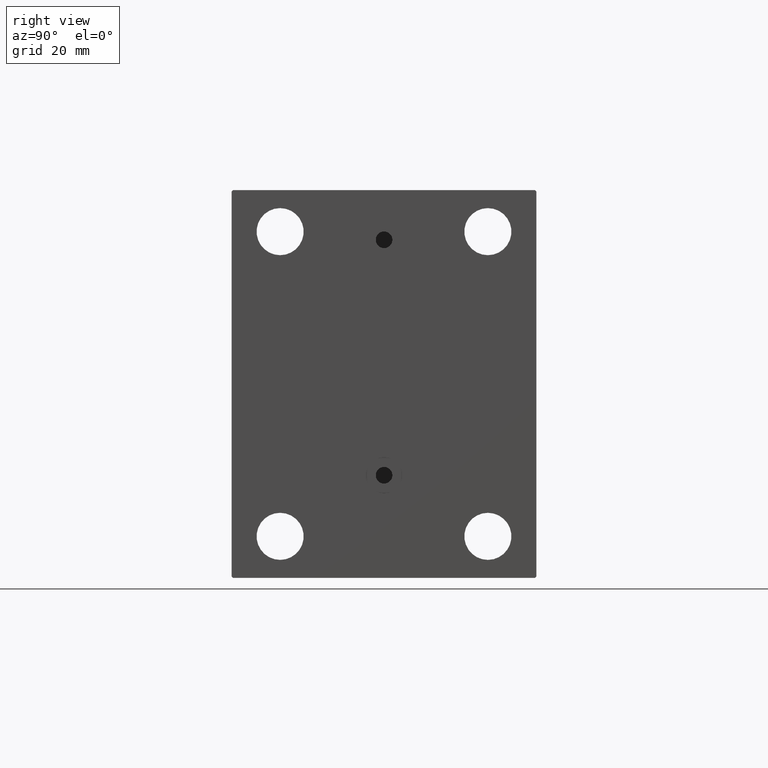
[diagram: clean part render]
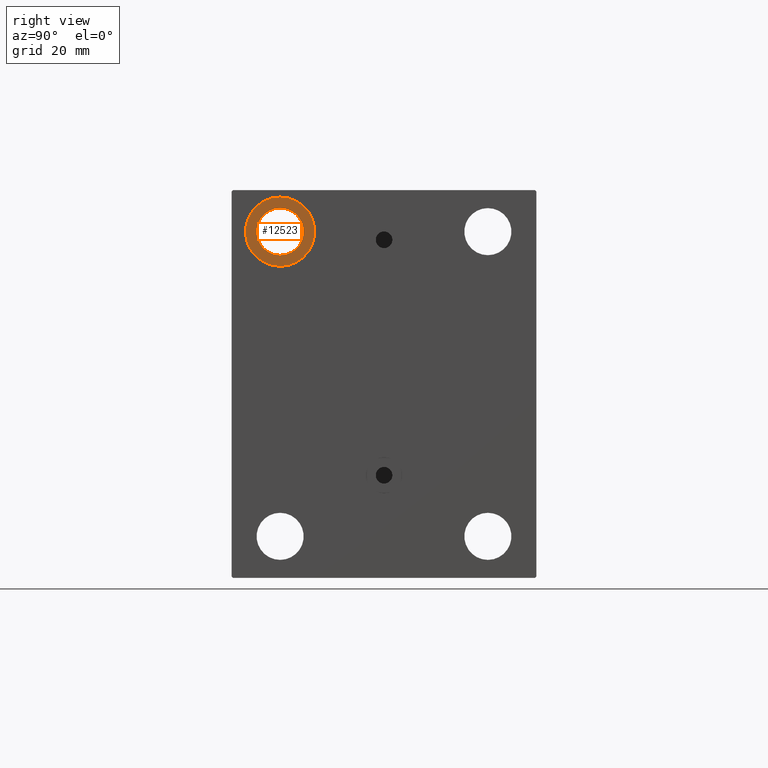
[diagram: same view with one face highlighted and labeled with its STEP entity id]
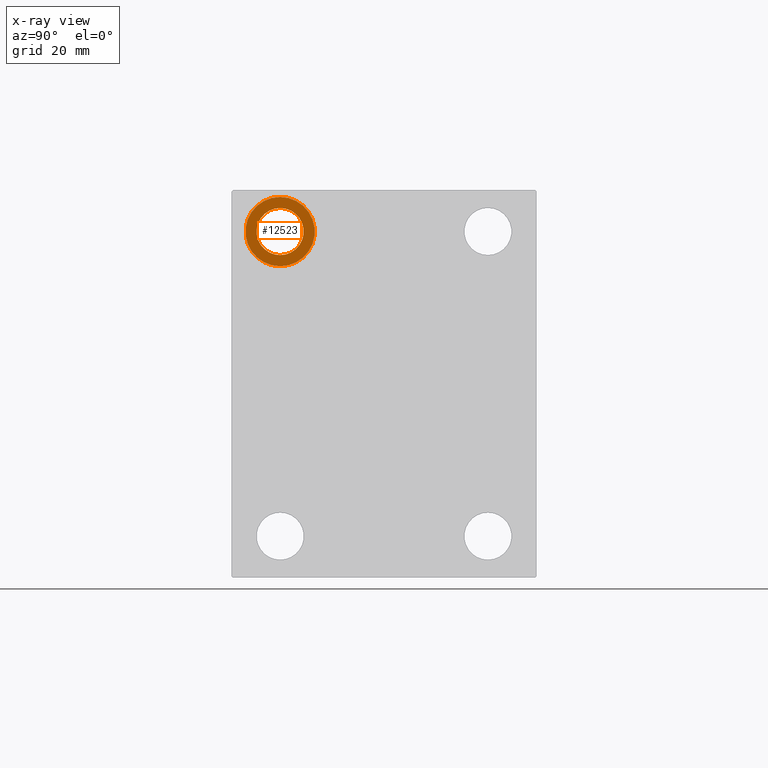
[diagram: x-ray of the same camera — body ghosted, the highlighted face saturated]
A machine part, right view. The second image highlights one B-rep face of the part: STEP entity #12523.
The next image is the same camera in x-ray: the body ghosted, the highlighted face saturated — about 0% of this face is hidden behind the body in this view.
In plain terms, the highlighted planar face has unit normal (1, 0, 0).
Its self-contained STEP definition (entity closure, byte-faithful):
#663 = EDGE_CURVE ( 'NONE', #27829, #10731, #30561, .T. ) ;
#870 = DIRECTION ( 'NONE',  ( 0.000000000000000000, 0.000000000000000000, 1.000000000000000000 ) ) ;
#1414 = AXIS2_PLACEMENT_3D ( 'NONE', #7335, #39075, #870 ) ;
#4572 = EDGE_LOOP ( 'NONE', ( #38587, #43314 ) ) ;
#5334 = DIRECTION ( 'NONE',  ( 0.000000000000000000, 0.000000000000000000, -1.000000000000000000 ) ) ;
#6514 = FACE_BOUND ( 'NONE', #19314, .T. ) ;
#7118 = ORIENTED_EDGE ( 'NONE', *, *, #34663, .T. ) ;
#7335 = CARTESIAN_POINT ( 'NONE',  ( 106.0000000000000000, -37.50000000000000711, 55.00000000000000711 ) ) ;
#7558 = CARTESIAN_POINT ( 'NONE',  ( 106.0000000000000000, -37.50000000000000711, 46.50000000000001421 ) ) ;
#8015 = ORIENTED_EDGE ( 'NONE', *, *, #663, .T. ) ;
#10731 = VERTEX_POINT ( 'NONE', #32482 ) ;
#11516 = CARTESIAN_POINT ( 'NONE',  ( 106.0000000000000000, -37.50000000000000711, 67.50000000000000000 ) ) ;
#12295 = CIRCLE ( 'NONE', #38036, 12.49999999999999645 ) ;
#12523 = ADVANCED_FACE ( 'NONE', ( #16417, #6514 ), #31124, .T. ) ;
#14316 = DIRECTION ( 'NONE',  ( 0.000000000000000000, 0.000000000000000000, -1.000000000000000000 ) ) ;
#16417 = FACE_OUTER_BOUND ( 'NONE', #4572, .T. ) ;
#16526 = CARTESIAN_POINT ( 'NONE',  ( 106.0000000000000000, -37.50000000000000711, 42.50000000000000711 ) ) ;
#19314 = EDGE_LOOP ( 'NONE', ( #7118, #8015 ) ) ;
#20997 = AXIS2_PLACEMENT_3D ( 'NONE', #37072, #43330, #5334 ) ;
#21444 = CARTESIAN_POINT ( 'NONE',  ( 106.0000000000000000, -37.50000000000000711, 55.00000000000000711 ) ) ;
#21667 = CARTESIAN_POINT ( 'NONE',  ( 106.0000000000000000, -37.50000000000000711, 55.00000000000000711 ) ) ;
#22415 = VERTEX_POINT ( 'NONE', #16526 ) ;
#22820 = EDGE_CURVE ( 'NONE', #22415, #26967, #12295, .T. ) ;
#26967 = VERTEX_POINT ( 'NONE', #11516 ) ;
#27493 = DIRECTION ( 'NONE',  ( 0.000000000000000000, 0.000000000000000000, 1.000000000000000000 ) ) ;
#27829 = VERTEX_POINT ( 'NONE', #7558 ) ;
#28111 = DIRECTION ( 'NONE',  ( -1.000000000000000000, -0.000000000000000000, -0.000000000000000000 ) ) ;
#30561 = CIRCLE ( 'NONE', #20997, 8.499999999999992895 ) ;
#30680 = CARTESIAN_POINT ( 'NONE',  ( 106.0000000000000000, 0.000000000000000000, 0.000000000000000000 ) ) ;
#30961 = CIRCLE ( 'NONE', #39032, 8.499999999999992895 ) ;
#31124 = PLANE ( 'NONE',  #42982 ) ;
#32121 = EDGE_CURVE ( 'NONE', #26967, #22415, #44045, .T. ) ;
#32482 = CARTESIAN_POINT ( 'NONE',  ( 106.0000000000000000, -37.50000000000000711, 63.50000000000000000 ) ) ;
#34663 = EDGE_CURVE ( 'NONE', #10731, #27829, #30961, .T. ) ;
#37072 = CARTESIAN_POINT ( 'NONE',  ( 106.0000000000000000, -37.50000000000000711, 55.00000000000000711 ) ) ;
#37578 = DIRECTION ( 'NONE',  ( 1.000000000000000000, 0.000000000000000000, -0.000000000000000000 ) ) ;
#37794 = DIRECTION ( 'NONE',  ( 0.000000000000000000, 0.000000000000000000, 1.000000000000000000 ) ) ;
#37857 = DIRECTION ( 'NONE',  ( -1.000000000000000000, -0.000000000000000000, -0.000000000000000000 ) ) ;
#38036 = AXIS2_PLACEMENT_3D ( 'NONE', #21667, #37857, #27493 ) ;
#38587 = ORIENTED_EDGE ( 'NONE', *, *, #22820, .F. ) ;
#39032 = AXIS2_PLACEMENT_3D ( 'NONE', #21444, #28111, #14316 ) ;
#39075 = DIRECTION ( 'NONE',  ( -1.000000000000000000, -0.000000000000000000, -0.000000000000000000 ) ) ;
#42982 = AXIS2_PLACEMENT_3D ( 'NONE', #30680, #37578, #37794 ) ;
#43314 = ORIENTED_EDGE ( 'NONE', *, *, #32121, .F. ) ;
#43330 = DIRECTION ( 'NONE',  ( -1.000000000000000000, -0.000000000000000000, -0.000000000000000000 ) ) ;
#44045 = CIRCLE ( 'NONE', #1414, 12.49999999999999645 ) ;